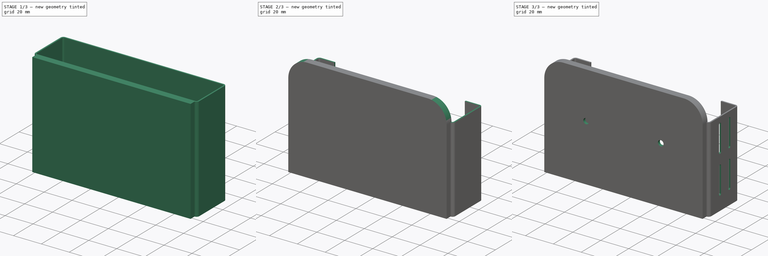
[diagram: build sequence overview — one tinted view per stage of 3, left to right]
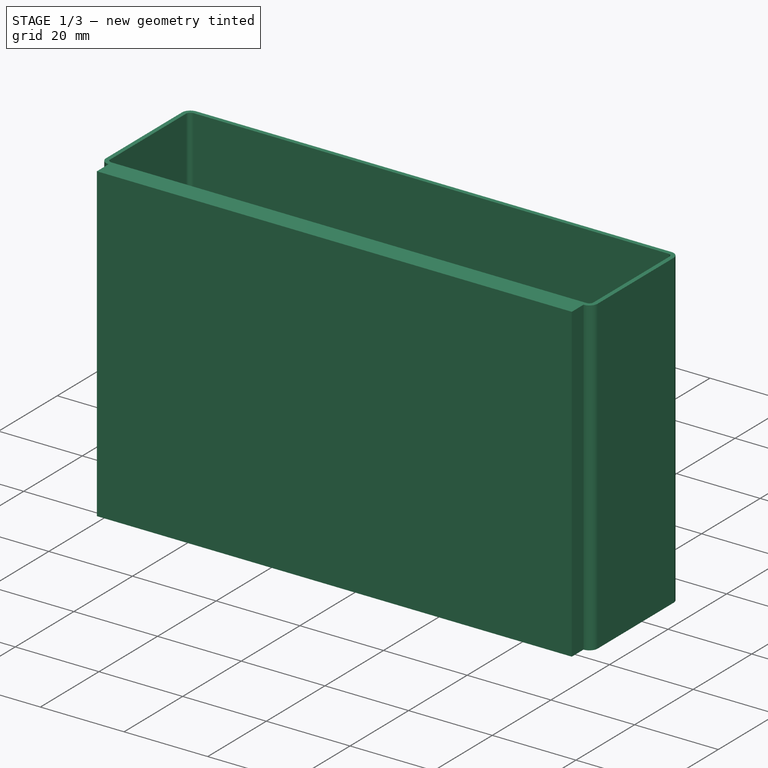
[diagram: stage 1 of 3 — iso view after this stage's code; geometry added in this stage tinted green]
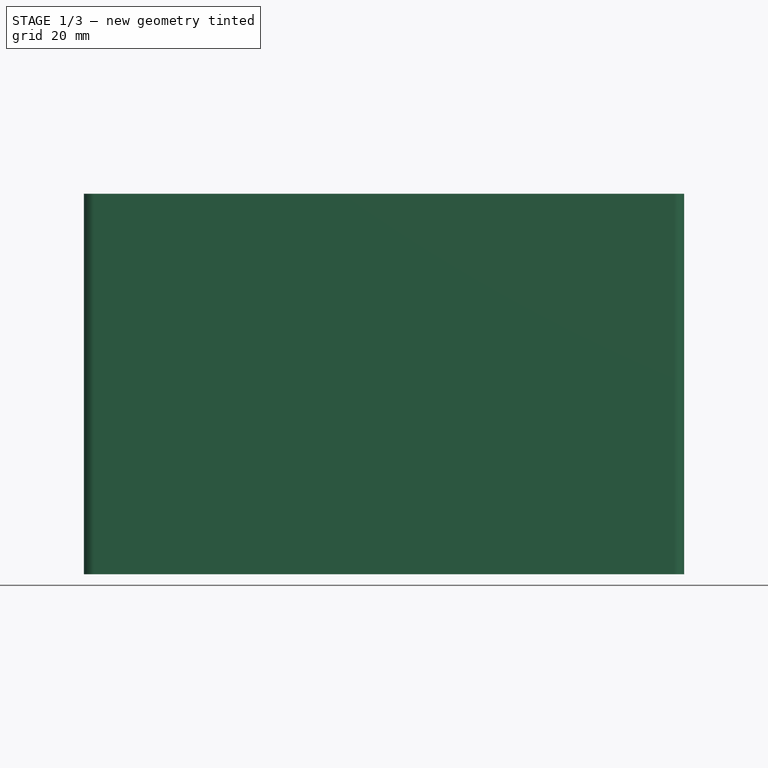
[diagram: stage 1 of 3 — front view after this stage's code; geometry added in this stage tinted green]
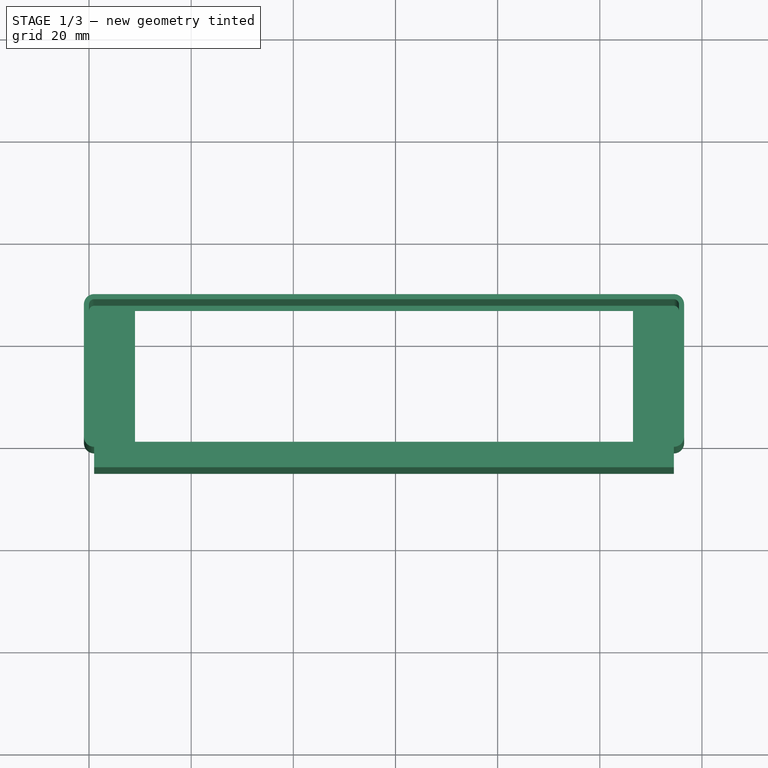
[diagram: stage 1 of 3 — top view after this stage's code; geometry added in this stage tinted green]
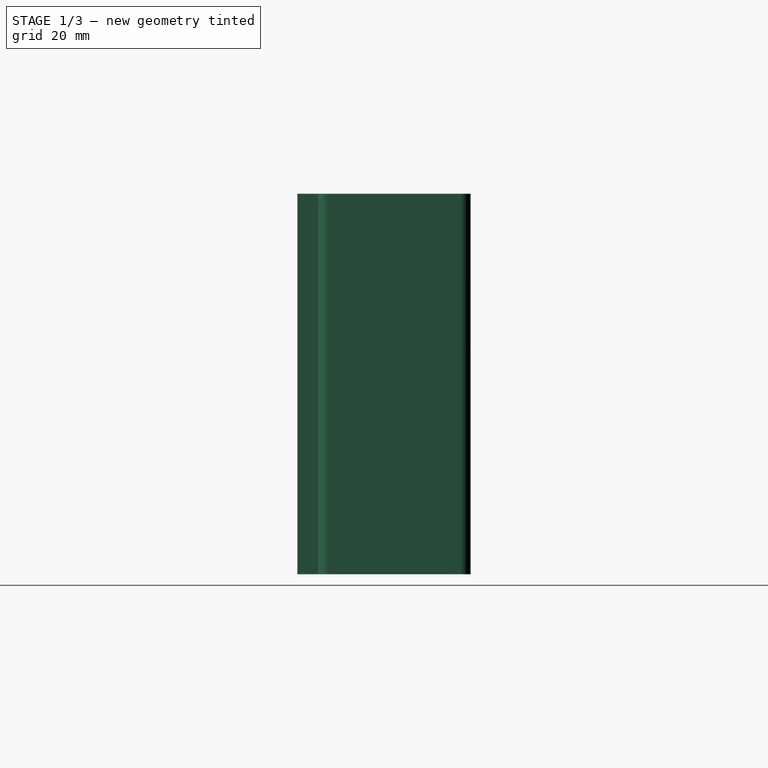
[diagram: stage 1 of 3 — right view after this stage's code; geometry added in this stage tinted green]
FCSTD DOCUMENT  (FreeCAD 0.19R24415 (Git))
Label: grandstream-ht702-mount
License: All rights reserved
LicenseURL: http://en.wikipedia.org/wiki/All_rights_reserved
objects: Sketcher::SketchObject×7, PartDesign::Pocket×4, PartDesign::Pad×2, PartDesign::Hole×1, PartDesign::Body×1
note: 22 computed .brp shape members not serialized (recipe doc carries the construction recipe); baked Part::Feature solids carry a one-line shape summary decoded from their .brp

FEATURE [Sketcher::SketchObject] Sketch
  FullyConstrained = true
  MapMode = 5
  Support = -> [XY_Plane]
  sketch-geometry (21):
    g0: LineSegment StartX=1 StartY=0 StartZ=0 EndX=114.5 EndY=0 EndZ=0
    g1: LineSegment StartX=115.5 StartY=1 StartZ=0 EndX=115.5 EndY=26.9 EndZ=0
    g2: LineSegment StartX=114.5 StartY=27.9 StartZ=0 EndX=1 EndY=27.9 EndZ=0
    g3: LineSegment StartX=0 StartY=26.9 StartZ=0 EndX=0 EndY=1 EndZ=0
    g4: ArcOfCircle CenterX=1 CenterY=1 CenterZ=0 NormalX=0 NormalY=0 NormalZ=1 AngleXU=0 Radius=1 StartAngle=3.14159 EndAngle=4.71239
    g5: ArcOfCircle CenterX=1 CenterY=26.9 CenterZ=0 NormalX=0 NormalY=0 NormalZ=1 AngleXU=0 Radius=1 StartAngle=1.5708 EndAngle=3.14159
    g6: GeomPoint X=0 Y=27.9 Z=0
    g7: ArcOfCircle CenterX=114.5 CenterY=1 CenterZ=0 NormalX=0 NormalY=0 NormalZ=1 AngleXU=0 Radius=1 StartAngle=4.71239 EndAngle=6.28319
    g8: GeomPoint X=115.5 Y=0 Z=0
    g9: ArcOfCircle CenterX=114.5 CenterY=26.9 CenterZ=0 NormalX=0 NormalY=0 NormalZ=1 AngleXU=0 Radius=1 StartAngle=-9e-16 EndAngle=1.5708
    g10: GeomPoint X=115.5 Y=27.9 Z=0
    g11: LineSegment StartX=1 StartY=-1 StartZ=0 EndX=1 EndY=-5 EndZ=0
    g12: LineSegment StartX=1 StartY=-5 StartZ=0 EndX=114.5 EndY=-5 EndZ=0
    g13: LineSegment StartX=114.5 StartY=-1 StartZ=0 EndX=114.5 EndY=-5 EndZ=0
    g14: LineSegment StartX=-1 StartY=1 StartZ=0 EndX=-1 EndY=26.9 EndZ=0
    g15: ArcOfCircle CenterX=1 CenterY=1 CenterZ=0 NormalX=0 NormalY=0 NormalZ=1 AngleXU=0 Radius=2 StartAngle=3.14159 EndAngle=4.71239
    g16: LineSegment StartX=1 StartY=28.9 StartZ=0 EndX=114.5 EndY=28.9 EndZ=0
    g17: ArcOfCircle CenterX=1 CenterY=26.9 CenterZ=0 NormalX=0 NormalY=0 NormalZ=1 AngleXU=0 Radius=2 StartAngle=1.5708 EndAngle=3.14159
    g18: LineSegment StartX=116.5 StartY=0.999995 StartZ=0 EndX=116.5 EndY=26.9 EndZ=0
    g19: ArcOfCircle CenterX=114.5 CenterY=26.9 CenterZ=0 NormalX=0 NormalY=0 NormalZ=1 AngleXU=0 Radius=2 StartAngle=4e-16 EndAngle=1.5708
    g20: ArcOfCircle CenterX=114.5 CenterY=1 CenterZ=0 NormalX=0 NormalY=0 NormalZ=1 AngleXU=0 Radius=2 StartAngle=4.71239 EndAngle=6.28318
  constraints (56):
    c: Horizontal(g0)
    c: Horizontal(g2)
    c: Vertical(g1)
    c: Vertical(g3)
    c: DistanceY(g-1,g6) = 27.9  'inner height'
    c: DistanceX(g6,g10) = 115.5  'inner width'
    c: Tangent(g3,g4) = -1.5708
    c: Tangent(g0,g4) = -1.5708
    c: Horizontal(g0,g-1)
    c: Vertical(g4,g-1)
    c: PointOnObject(g6,g3)
    c: PointOnObject(g6,g2)
    c: Tangent(g3,g5) = -1.5708
    c: Tangent(g2,g5) = -1.5708
    c: DistanceX(g-1,g0) = 1  'corner rounding'
    c: Vertical(g4,g5)
    c: PointOnObject(g8,g1)
    c: PointOnObject(g8,g0)
    c: Tangent(g1,g7) = -1.5708
    c: Tangent(g0,g7) = -1.5708
    c: Horizontal(g4,g7)
    c: PointOnObject(g10,g2)
    c: PointOnObject(g10,g1)
    c: Tangent(g2,g9) = -1.5708
    c: Tangent(g1,g9) = -1.5708
    c: Vertical(g9,g7)
    c: Vertical(g11)
    c: Vertical(g0,g11)
    c: DistanceY(g11,g0) = 1
    c: DistanceY(g11,g11) = 4
    c: Coincident(g12,g11)
    c: Horizontal(g12)
    c: Coincident(g13,g12)
    c: Vertical(g7,g13)
    c: Vertical(g13)
    c: Horizontal(g13,g11)
    c: Vertical(g14)
    c: Horizontal(g4,g14)
    c: Horizontal(g5,g14)
    c: Coincident(g15,g4)
    c: Coincident(g15,g14)
    c: Coincident(g11,g15)
    c: Horizontal(g16)
    c: Vertical(g5,g16)
    c: Vertical(g9,g16)
    c: Coincident(g17,g5)
    c: Coincident(g17,g14)
    c: Coincident(g17,g16)
    c: Vertical(g18)
    c: Horizontal(g9,g18)
    c: Coincident(g19,g9)
    c: Coincident(g19,g18)
    c: Coincident(g19,g16)
    c: Coincident(g20,g7)
    c: Coincident(g20,g18)
    c: Coincident(g20,g13)
FEATURE [PartDesign::Pad] Pad
  Direction = (1,1,1)
  Length = 74.5
  Length2 = 100
  Profile = -> Sketch
  Type = 0
FEATURE [Sketcher::SketchObject] Sketch001
  ExternalGeometry = -> [Pad]
  FullyConstrained = true
  MapMode = 5
  Support = -> [XY_Plane]
  sketch-geometry (18):
    g0: LineSegment StartX=-1 StartY=1 StartZ=0 EndX=-1 EndY=26.9 EndZ=0
    g1: LineSegment StartX=116.5 StartY=26.9 StartZ=0 EndX=116.5 EndY=0.999995 EndZ=0
    g2: LineSegment StartX=114.5 StartY=-1 StartZ=0 EndX=114.5 EndY=-5 EndZ=0
    g3: LineSegment StartX=114.5 StartY=-5 StartZ=0 EndX=1 EndY=-5 EndZ=0
    g4: LineSegment StartX=1 StartY=-5 StartZ=0 EndX=1 EndY=-1 EndZ=0
    g5: ArcOfCircle CenterX=114.5 CenterY=1 CenterZ=0 NormalX=0 NormalY=0 NormalZ=1 AngleXU=0 Radius=2 StartAngle=4.71239 EndAngle=6.28318
    g6: ArcOfCircle CenterX=1 CenterY=1 CenterZ=0 NormalX=0 NormalY=0 NormalZ=1 AngleXU=0 Radius=2 StartAngle=3.14159 EndAngle=4.71239
    g7: LineSegment StartX=1 StartY=28.9 StartZ=0 EndX=114.5 EndY=28.9 EndZ=0
    g8: ArcOfCircle CenterX=1 CenterY=26.9 CenterZ=0 NormalX=0 NormalY=0 NormalZ=1 AngleXU=0 Radius=2 StartAngle=1.5708 EndAngle=3.14159
    g9: ArcOfCircle CenterX=114.5 CenterY=26.9 CenterZ=0 NormalX=0 NormalY=0 NormalZ=1 AngleXU=0 Radius=2 StartAngle=2e-16 EndAngle=1.5708
    g10: LineSegment StartX=-1 StartY=26.9 StartZ=0 EndX=9 EndY=26.9 EndZ=0
    g11: LineSegment StartX=-1 StartY=1 StartZ=0 EndX=9 EndY=1 EndZ=0
    g12: LineSegment StartX=9 StartY=26.9 StartZ=0 EndX=9 EndY=1 EndZ=0
    g13: LineSegment StartX=116.5 StartY=26.9 StartZ=0 EndX=106.5 EndY=26.9 EndZ=0
    g14: LineSegment StartX=116.5 StartY=0.999995 StartZ=0 EndX=106.5 EndY=0.999995 EndZ=0
    g15: LineSegment StartX=106.5 StartY=26.9 StartZ=0 EndX=106.5 EndY=0.999995 EndZ=0
    g16: LineSegment StartX=9 StartY=26.9 StartZ=0 EndX=106.5 EndY=26.9 EndZ=0
    g17: LineSegment StartX=9 StartY=1 StartZ=0 EndX=106.5 EndY=0.999995 EndZ=0
  constraints (44):
    c: Coincident(g0,g-9)
    c: Coincident(g4,g-9)
    c: Coincident(g4,g-8)
    c: Coincident(g3,g4)
    c: Coincident(g-7,g3)
    c: Coincident(g3,g2)
    c: Coincident(g-5,g1)
    c: Coincident(g1,g-4)
    c: Coincident(g-3,g0)
    c: Coincident(g2,g-6)
    c: Coincident(g5,g-5)
    c: Coincident(g5,g1)
    c: Coincident(g5,g2)
    c: Coincident(g6,g-9)
    c: Coincident(g6,g4)
    c: Coincident(g6,g0)
    c: Coincident(g7,g-3)
    c: Coincident(g7,g-4)
    c: Coincident(g8,g-3)
    c: Coincident(g8,g0)
    c: Coincident(g8,g7)
    c: Coincident(g9,g-4)
    c: Coincident(g9,g1)
    c: Coincident(g9,g7)
    c: Coincident(g10,g0)
    c: Horizontal(g10)
    c: DistanceX(g10,g10) = 10
    c: Coincident(g11,g0)
    c: Horizontal(g11)
    c: Coincident(g12,g10)
    c: Vertical(g12)
    c: Coincident(g11,g12)
    c: Coincident(g13,g1)
    c: Horizontal(g13)
    c: DistanceX(g13,g13) = 10
    c: Coincident(g14,g1)
    c: Horizontal(g14)
    c: Coincident(g15,g13)
    c: Coincident(g15,g14)
    c: Vertical(g15)
    c: Coincident(g16,g12)
    c: Coincident(g16,g15)
    c: Coincident(g17,g12)
    c: Coincident(g17,g15)
FEATURE [PartDesign::Pad] Pad001
  BaseFeature = -> Pad
  Direction = (1,1,1)
  Length = 1
  Length2 = 100
  Profile = -> Sketch001
  Type = 0
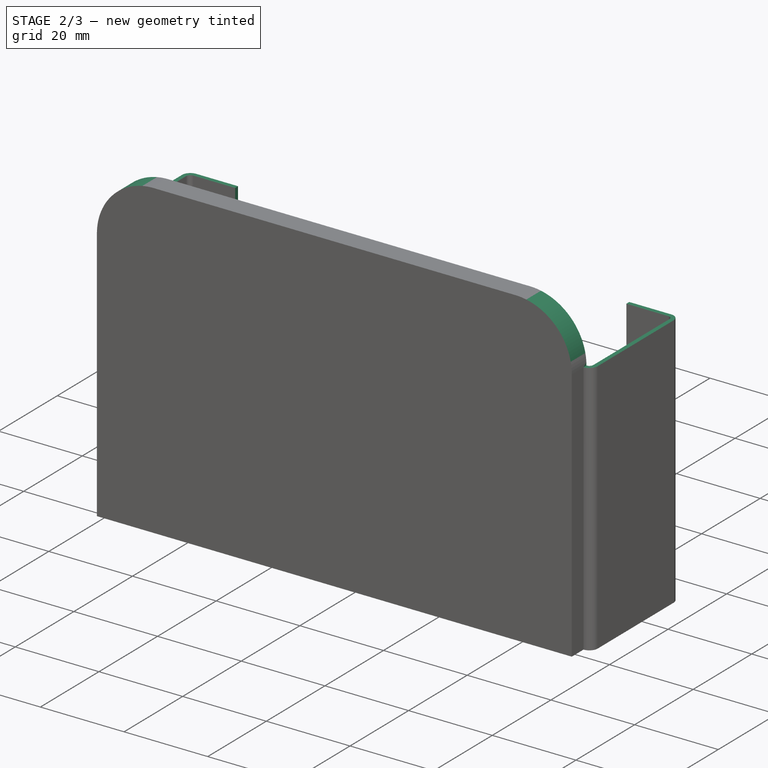
[diagram: stage 2 of 3 — iso view after this stage's code; geometry added in this stage tinted green]
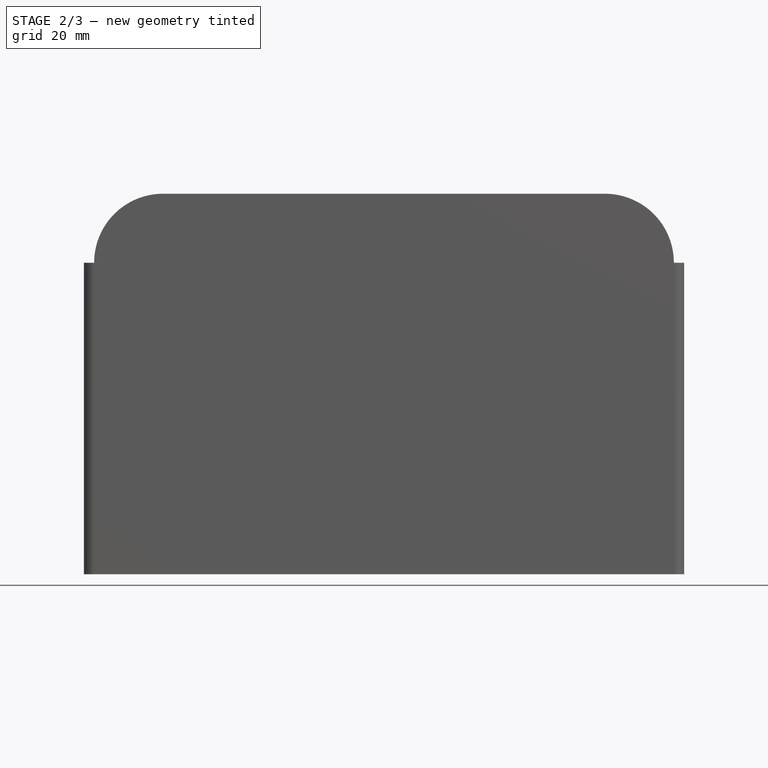
[diagram: stage 2 of 3 — front view after this stage's code; geometry added in this stage tinted green]
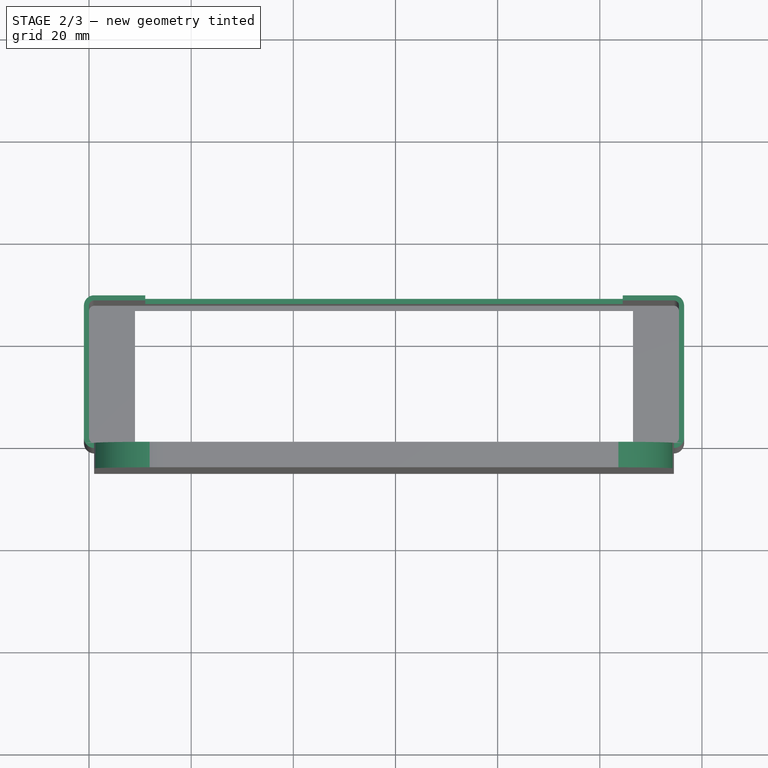
[diagram: stage 2 of 3 — top view after this stage's code; geometry added in this stage tinted green]
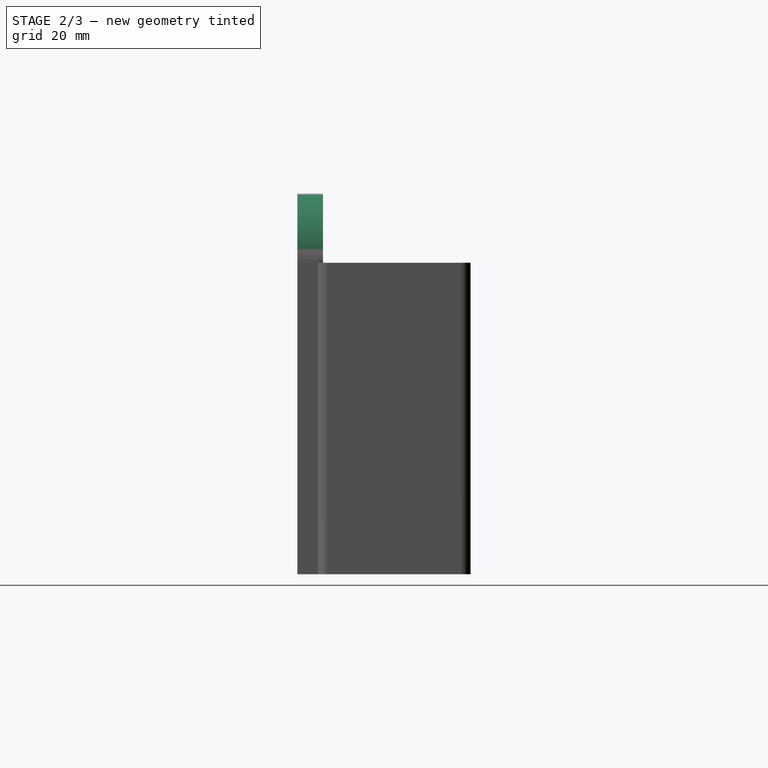
[diagram: stage 2 of 3 — right view after this stage's code; geometry added in this stage tinted green]
FEATURE [Sketcher::SketchObject] Sketch002
  ExternalGeometry = -> [Pad001]
  FullyConstrained = true
  MapMode = 5
  Placement = pos=(0,28.9,0) rot=(0,0.707107,0.707107;3.14159rad)
  Support = -> [Pad001]
  sketch-geometry (12):
    g0: LineSegment StartX=-114.5 StartY=1 StartZ=0 EndX=-104.5 EndY=21 EndZ=0
    g1: LineSegment StartX=-1 StartY=1 StartZ=0 EndX=-11 EndY=21 EndZ=0
    g2: LineSegment StartX=-114.5 StartY=74.5 StartZ=0 EndX=-124.5 EndY=74.5 EndZ=0
    g3: LineSegment StartX=-1 StartY=74.5 StartZ=0 EndX=9 EndY=74.5 EndZ=0
    g4: LineSegment StartX=-104.5 StartY=21 StartZ=0 EndX=-104.5 EndY=61 EndZ=0
    g5: LineSegment StartX=-104.5 StartY=21 StartZ=0 EndX=-11 EndY=21 EndZ=0
    g6: LineSegment StartX=-11 StartY=21 StartZ=0 EndX=-11 EndY=61 EndZ=0
    g7: LineSegment StartX=-104.5 StartY=61 StartZ=0 EndX=-124.5 EndY=61 EndZ=0
    g8: LineSegment StartX=-11 StartY=61 StartZ=0 EndX=9 EndY=61 EndZ=0
    g9: LineSegment StartX=-124.5 StartY=61 StartZ=0 EndX=-124.5 EndY=74.5 EndZ=0
    g10: LineSegment StartX=9 StartY=61 StartZ=0 EndX=9 EndY=74.5 EndZ=0
    g11: LineSegment StartX=-124.5 StartY=74.5 StartZ=0 EndX=9 EndY=74.5 EndZ=0
  constraints (32):
    c: Coincident(g0,g-3)
    c: Coincident(g1,g-3)
    c: DistanceX(g1,g1) = 10
    c: DistanceY(g1,g1) = 20
    c: DistanceX(g0,g0) = 10
    c: Horizontal(g0,g1)
    c: Coincident(g2,g-4)
    c: Horizontal(g2)
    c: Coincident(g3,g-4)
    c: Horizontal(g3)
    c: DistanceX(g3,g3) = 10
    c: DistanceX(g2,g2) = 10
    c: Coincident(g4,g0)
    c: Vertical(g4)
    c: DistanceY(g4,g4) = 40
    c: Coincident(g5,g4)
    c: Coincident(g5,g1)
    c: Coincident(g6,g5)
    c: Vertical(g6)
    c: Horizontal(g6,g4)
    c: Coincident(g7,g4)
    c: Horizontal(g7)
    c: Coincident(g8,g6)
    c: Horizontal(g8)
    c: Coincident(g9,g7)
    c: Vertical(g9)
    c: Coincident(g9,g2)
    c: Coincident(g10,g8)
    c: Coincident(g10,g3)
    c: Vertical(g10)
    c: Coincident(g11,g9)
    c: Coincident(g11,g10)
FEATURE [PartDesign::Pocket] Pocket
  BaseFeature = -> Pad001
  Length = 0
  Length2 = 100
  Profile = -> Sketch002
  Type = 3
  UpToFace = -> Pad001 [Face35]
FEATURE [Sketcher::SketchObject] Sketch003
  ExternalGeometry = -> [Pocket]
  FullyConstrained = true
  MapMode = 5
  Placement = pos=(0,0,0) rot=(0,0.707107,0.707107;3.14159rad)
  Support = -> [Pocket]
  sketch-geometry (10):
    g0: ArcOfCircle CenterX=-101 CenterY=61 CenterZ=0 NormalX=0 NormalY=0 NormalZ=1 AngleXU=0 Radius=13.5 StartAngle=1.5708 EndAngle=3.14159
    g1: GeomPoint X=-114.5 Y=74.5 Z=0
    g2: ArcOfCircle CenterX=-14.5 CenterY=61 CenterZ=0 NormalX=0 NormalY=0 NormalZ=1 AngleXU=0 Radius=13.5 StartAngle=0 EndAngle=1.5708
    g3: GeomPoint X=-1 Y=74.5 Z=0
    g4: LineSegment StartX=-114.5 StartY=61 StartZ=0 EndX=-124.5 EndY=61 EndZ=0
    g5: LineSegment StartX=-124.5 StartY=61 StartZ=0 EndX=-124.5 EndY=74.5 EndZ=0
    g6: LineSegment StartX=-124.5 StartY=74.5 StartZ=0 EndX=-101 EndY=74.5 EndZ=0
    g7: LineSegment StartX=-14.5 StartY=74.5 StartZ=0 EndX=9 EndY=74.5 EndZ=0
    g8: LineSegment StartX=9 StartY=74.5 StartZ=0 EndX=9 EndY=61 EndZ=0
    g9: LineSegment StartX=9 StartY=61 StartZ=0 EndX=-1 EndY=61 EndZ=0
  constraints (26):
    c: Coincident(g1,g-5)
    c: Coincident(g3,g-5)
    c: Coincident(g6,g0) = 1.5708
    c: Coincident(g0,g-3)
    c: Horizontal(g0,g0)
    c: Coincident(g7,g2) = 1.5708
    c: Coincident(g2,g-4)
    c: Horizontal(g2,g2)
    c: Coincident(g4,g0)
    c: Horizontal(g4)
    c: Coincident(g5,g4)
    c: Vertical(g5)
    c: Coincident(g6,g5)
    c: Horizontal(g6)
    c: Horizontal(g7)
    c: Coincident(g8,g7)
    c: Vertical(g8)
    c: Coincident(g9,g8)
    c: Coincident(g9,g2)
    c: Horizontal(g9)
    c: DistanceX(g4,g4) = 10
    c: DistanceX(g9,g9) = 10
    c: Horizontal(g2,g3)
    c: Horizontal(g0,g1)
    c: Vertical(g2,g2)
    c: Vertical(g0,g0)
FEATURE [PartDesign::Pocket] Pocket001
  BaseFeature = -> Pocket
  Length = 5
  Length2 = 100
  Profile = -> Sketch003
  Type = 1
FEATURE [Sketcher::SketchObject] Sketch004
  ExternalGeometry = -> [Pocket001]
  FullyConstrained = true
  MapMode = 5
  Placement = pos=(0,0,0) rot=(0,0.707107,0.707107;3.14159rad)
  Support = -> [Pocket001]
  sketch-geometry (4):
    g0: LineSegment StartX=-104.5 StartY=41 StartZ=0 EndX=-84.5 EndY=41 EndZ=0
    g1: LineSegment StartX=-11 StartY=41 StartZ=0 EndX=-31 EndY=41 EndZ=0
    g2: Circle CenterX=-84.5 CenterY=41 CenterZ=0 NormalX=0 NormalY=0 NormalZ=1 AngleXU=0 Radius=5
    g3: Circle CenterX=-31 CenterY=41 CenterZ=0 NormalX=0 NormalY=0 NormalZ=1 AngleXU=0 Radius=5
  constraints (10):
    c: Horizontal(g0)
    c: Symmetric(g-3,g-3,g0)
    c: DistanceX(g0,g0) = 20
    c: Horizontal(g1)
    c: Symmetric(g-4,g-4,g1)
    c: DistanceX(g1,g1) = 20
    c: Coincident(g2,g0)
    c: Radius(g2) = 5
    c: Coincident(g3,g1)
    c: Radius(g3) = 5
FEATURE [Sketcher::SketchObject] Sketch005
  ExternalGeometry = -> [Pocket001]
  FullyConstrained = true
  MapMode = 5
  Placement = pos=(0,0,0) rot=(0,0.707107,0.707107;3.14159rad)
  Support = -> [Pocket001]
  sketch-geometry (4):
    g0: LineSegment StartX=-104.5 StartY=41 StartZ=0 EndX=-84.5 EndY=41 EndZ=0
    g1: LineSegment StartX=-11 StartY=41 StartZ=0 EndX=-31 EndY=41 EndZ=0
    g2: Circle CenterX=-84.5 CenterY=41 CenterZ=0 NormalX=0 NormalY=0 NormalZ=1 AngleXU=0 Radius=2
    g3: Circle CenterX=-31 CenterY=41 CenterZ=0 NormalX=0 NormalY=0 NormalZ=1 AngleXU=0 Radius=2
  constraints (10):
    c: Horizontal(g0)
    c: Symmetric(g-3,g-3,g0)
    c: DistanceX(g0,g0) = 20
    c: Horizontal(g1)
    c: Symmetric(g-4,g-4,g1)
    c: DistanceX(g1,g1) = 20
    c: Coincident(g2,g0)
    c: Coincident(g3,g1)
    c: Equal(g2,g3)
    c: Radius(g2) = 2
FEATURE [PartDesign::Pocket] Pocket002
  BaseFeature = -> Pocket001
  Length = 3
  Length2 = 100
  Profile = -> Sketch004
  Type = 0
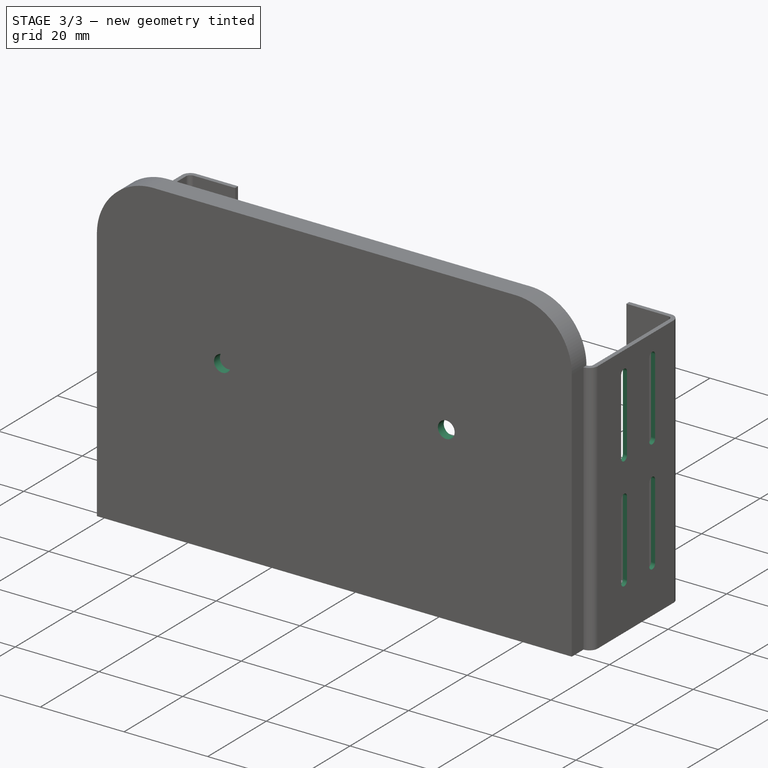
[diagram: stage 3 of 3 — iso view after this stage's code; geometry added in this stage tinted green]
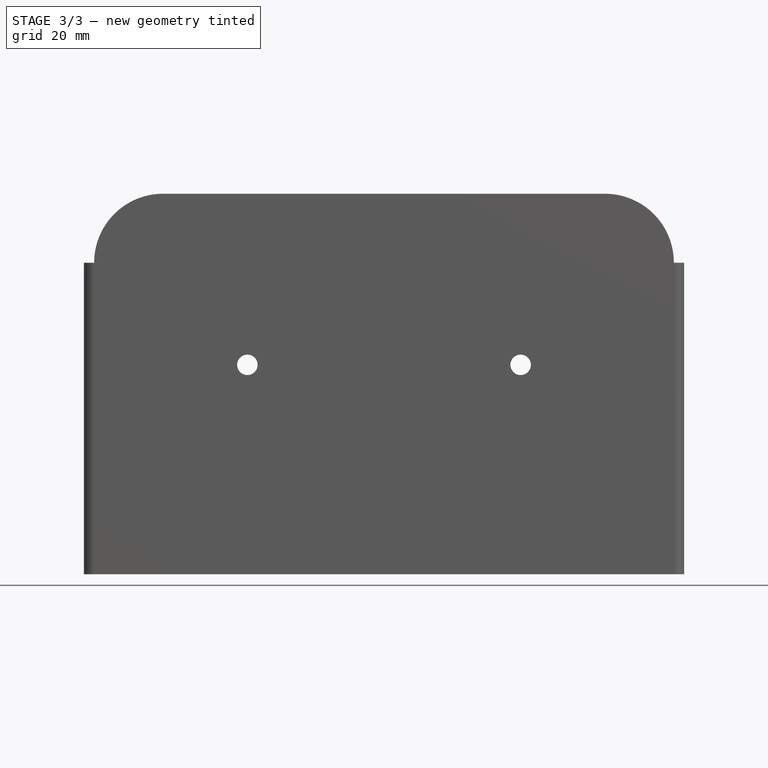
[diagram: stage 3 of 3 — front view after this stage's code; geometry added in this stage tinted green]
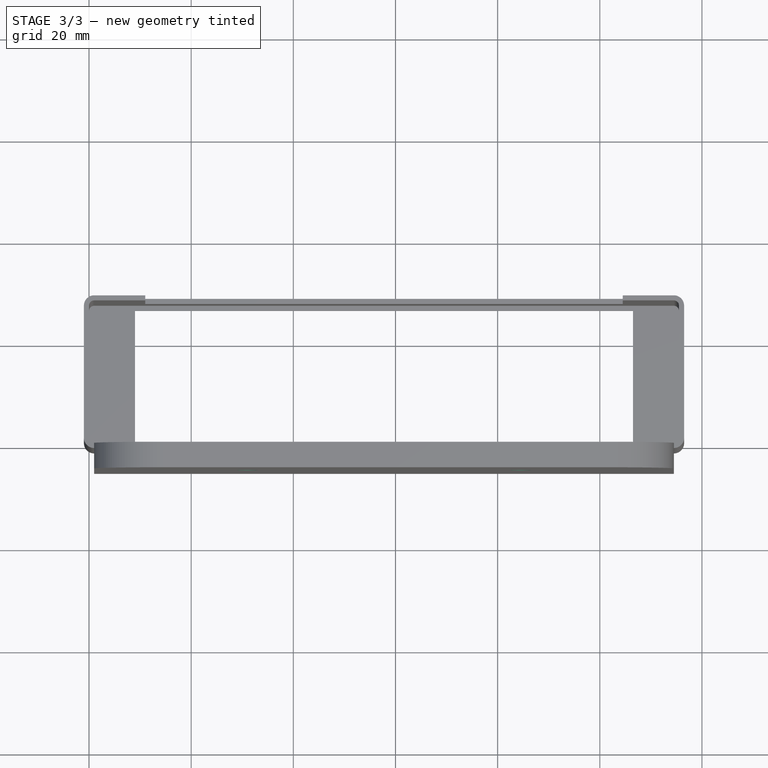
[diagram: stage 3 of 3 — top view after this stage's code; geometry added in this stage tinted green]
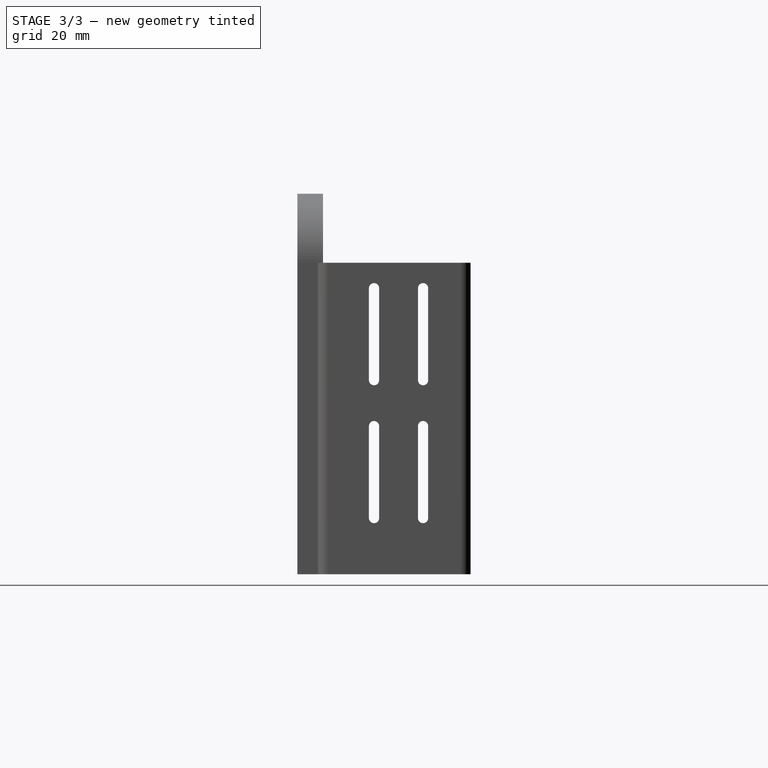
[diagram: stage 3 of 3 — right view after this stage's code; geometry added in this stage tinted green]
FEATURE [PartDesign::Hole] Hole
  BaseFeature = -> Pocket002
  Depth = 25
  DepthType = 0
  Diameter = 4
  DrillForDepth = false
  DrillPoint = 1
  DrillPointAngle = 118
  HoleCutCountersinkAngle = 90
  HoleCutCustomValues = false
  HoleCutDepth = 0
  HoleCutDiameter = 6.1
  HoleCutType = 0
  ModelActualThread = false
  Profile = -> Sketch005
  Tapered = false
  TaperedAngle = 90
  ThreadAngle = 0
  ThreadClass = 0
  ThreadCutOffInner = 0
  ThreadCutOffOuter = 0
  ThreadDirection = 0
  ThreadFit = 0
  ThreadPitch = 0
  ThreadSize = 0
  ThreadType = 0
  Threaded = false
FEATURE [Sketcher::SketchObject] Sketch006
  ExternalGeometry = -> [Hole]
  FullyConstrained = true
  MapMode = 5
  Placement = pos=(116.5,0,0) rot=(0.57735,0.57735,0.57735;2.0944rad)
  Support = -> [Hole]
  sketch-geometry (26):
    g0: LineSegment StartX=0 StartY=0 StartZ=0 EndX=10 EndY=0 EndZ=0
    g1: LineSegment StartX=10 StartY=0 StartZ=0 EndX=19.6 EndY=0 EndZ=0
    g2: LineSegment StartX=10 StartY=0 StartZ=0 EndX=10 EndY=11 EndZ=0
    g3: LineSegment StartX=19.6 StartY=0 StartZ=0 EndX=19.6 EndY=11 EndZ=0
    g4: LineSegment StartX=10 StartY=11 StartZ=0 EndX=10 EndY=29 EndZ=0
    g5: LineSegment StartX=10 StartY=29 StartZ=0 EndX=10 EndY=38 EndZ=0
    g6: LineSegment StartX=10 StartY=38 StartZ=0 EndX=10 EndY=56 EndZ=0
    g7: LineSegment StartX=19.6 StartY=11 StartZ=0 EndX=19.6 EndY=29 EndZ=0
    g8: LineSegment StartX=19.6 StartY=29 StartZ=0 EndX=19.6 EndY=38 EndZ=0
    g9: LineSegment StartX=19.6 StartY=38 StartZ=0 EndX=19.6 EndY=56 EndZ=0
    g10: ArcOfCircle CenterX=10 CenterY=11 CenterZ=0 NormalX=0 NormalY=0 NormalZ=1 AngleXU=0 Radius=1 StartAngle=3.14159 EndAngle=6.28319
    g11: ArcOfCircle CenterX=10 CenterY=29 CenterZ=0 NormalX=0 NormalY=0 NormalZ=1 AngleXU=0 Radius=1 StartAngle=-9e-16 EndAngle=3.14159
    g12: LineSegment StartX=11 StartY=11 StartZ=0 EndX=11 EndY=29 EndZ=0
    g13: LineSegment StartX=9 StartY=11 StartZ=0 EndX=9 EndY=29 EndZ=0
    g14: ArcOfCircle CenterX=10 CenterY=38 CenterZ=0 NormalX=0 NormalY=0 NormalZ=1 AngleXU=0 Radius=1 StartAngle=3.14159 EndAngle=6.28319
    g15: ArcOfCircle CenterX=10 CenterY=56 CenterZ=0 NormalX=0 NormalY=0 NormalZ=1 AngleXU=0 Radius=1 StartAngle=1.6e-15 EndAngle=3.14159
    g16: LineSegment StartX=11 StartY=38 StartZ=0 EndX=11 EndY=56 EndZ=0
    g17: LineSegment StartX=9 StartY=38 StartZ=0 EndX=9 EndY=56 EndZ=0
    g18: ArcOfCircle CenterX=19.6 CenterY=11 CenterZ=0 NormalX=0 NormalY=0 NormalZ=1 AngleXU=0 Radius=1 StartAngle=3.14159 EndAngle=6.28319
    g19: ArcOfCircle CenterX=19.6 CenterY=29 CenterZ=0 NormalX=0 NormalY=0 NormalZ=1 AngleXU=0 Radius=1 StartAngle=-9e-16 EndAngle=3.14159
    g20: LineSegment StartX=20.6 StartY=11 StartZ=0 EndX=20.6 EndY=29 EndZ=0
    g21: LineSegment StartX=18.6 StartY=11 StartZ=0 EndX=18.6 EndY=29 EndZ=0
    g22: ArcOfCircle CenterX=19.6 CenterY=38 CenterZ=0 NormalX=0 NormalY=0 NormalZ=1 AngleXU=0 Radius=1 StartAngle=3.14159 EndAngle=6.28319
    g23: ArcOfCircle CenterX=19.6 CenterY=56 CenterZ=0 NormalX=0 NormalY=0 NormalZ=1 AngleXU=0 Radius=1 StartAngle=2.4e-15 EndAngle=3.14159
    g24: LineSegment StartX=20.6 StartY=38 StartZ=0 EndX=20.6 EndY=56 EndZ=0
    g25: LineSegment StartX=18.6 StartY=38 StartZ=0 EndX=18.6 EndY=56 EndZ=0
  constraints (66):
    c: Coincident(g0,g-1)
    c: DistanceX(g0,g0) = 10
    c: Coincident(g1,g0)
    c: Horizontal(g1)
    c: Horizontal(g0)
    c: DistanceX(g1,g1) = 9.6
    c: Coincident(g2,g0)
    c: Vertical(g2)
    c: DistanceY(g2,g2) = 11
    c: Coincident(g3,g1)
    c: Vertical(g3)
    c: Equal(g3,g2)
    c: Coincident(g4,g2)
    c: Vertical(g4)
    c: DistanceY(g4,g4) = 18
    c: Coincident(g5,g4)
    c: Vertical(g5)
    c: Coincident(g6,g5)
    c: Vertical(g6)
    c: DistanceY(g5,g5) = 9
    c: Equal(g6,g4)
    c: Coincident(g7,g3)
    c: Vertical(g7)
    c: Coincident(g8,g7)
    c: Vertical(g8)
    c: Coincident(g9,g8)
    c: Vertical(g9)
    c: Equal(g9,g6)
    c: Equal(g5,g8)
    c: Equal(g7,g4)
    c: Tangent(g10,g13) = 1.5708
    c: Tangent(g10,g12) = -1.5708
    c: Tangent(g12,g11) = -1.5708
    c: Tangent(g13,g11) = 1.5708
    c: Vertical(g12)
    c: Equal(g10,g11)
    c: Coincident(g10,g2)
    c: DistanceX(g11,g11) = 1
    c: Horizontal(g11,g4)
    c: Tangent(g14,g17) = 1.5708
    c: Tangent(g14,g16) = -1.5708
    c: Tangent(g16,g15) = -1.5708
    c: Tangent(g17,g15) = 1.5708
    c: Vertical(g16)
    c: Equal(g14,g15)
    c: Coincident(g14,g5)
    c: Vertical(g11,g15)
    c: Horizontal(g15,g6)
    c: Tangent(g18,g21) = 1.5708
    c: Tangent(g18,g20) = -1.5708
    c: Tangent(g20,g19) = -1.5708
    c: Tangent(g21,g19) = 1.5708
    c: Vertical(g20)
    c: Equal(g18,g19)
    c: Coincident(g18,g3)
    c: Horizontal(g19,g7)
    c: DistanceX(g18,g18) = 1
    c: Tangent(g22,g25) = 1.5708
    c: Tangent(g22,g24) = -1.5708
    c: Tangent(g24,g23) = -1.5708
    c: Tangent(g25,g23) = 1.5708
    c: Vertical(g24)
    c: Equal(g22,g23)
    c: Coincident(g22,g8)
    c: Horizontal(g9,g23)
    c: Vertical(g23,g19)
FEATURE [PartDesign::Pocket] Pocket003
  BaseFeature = -> Hole
  Length = 5
  Length2 = 100
  Profile = -> Sketch006
  Type = 1
FEATURE [PartDesign::Body] Body
  Group = -> [Sketch,Pad,Sketch001,Pad001,Sketch002,Pocket,Sketch003,Pocket001,Sketch004,Sketch005,Pocket002,Hole,Sketch006,Pocket003]
  Origin = -> Origin
  Tip = -> Pocket003
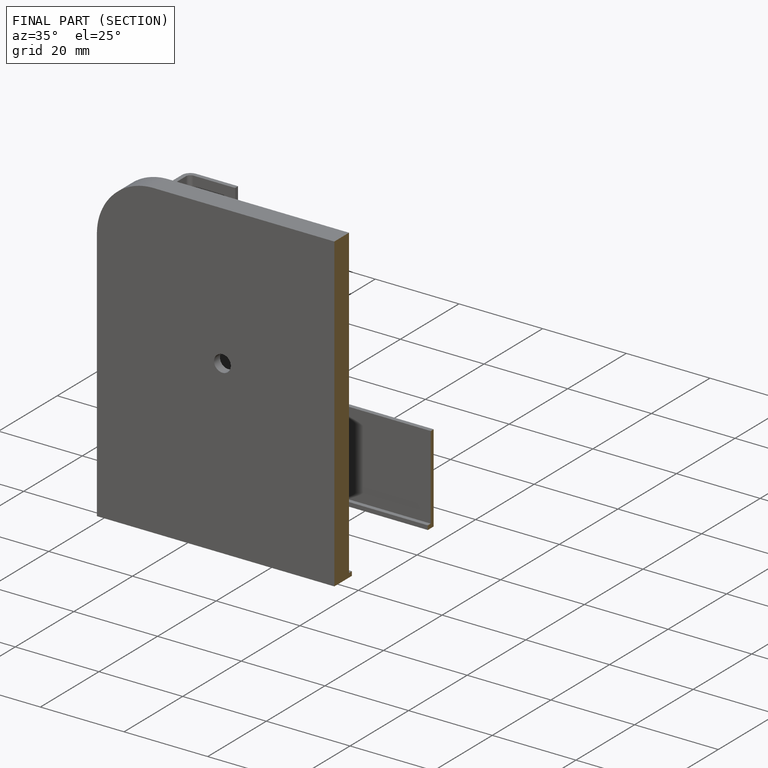
[diagram: finished part — half-section view (interior)]
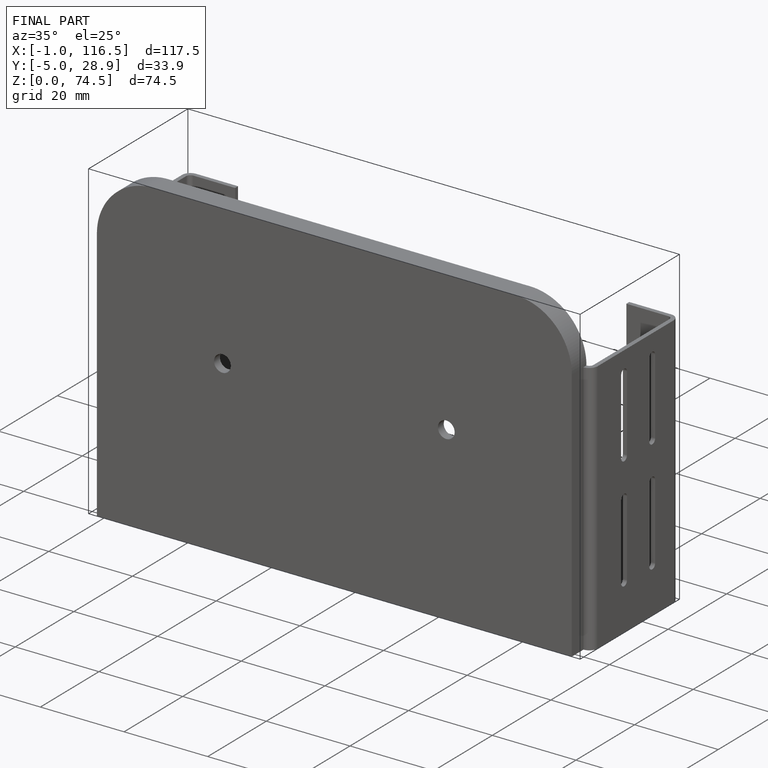
[diagram: finished part — iso view with bounding-box wireframe]
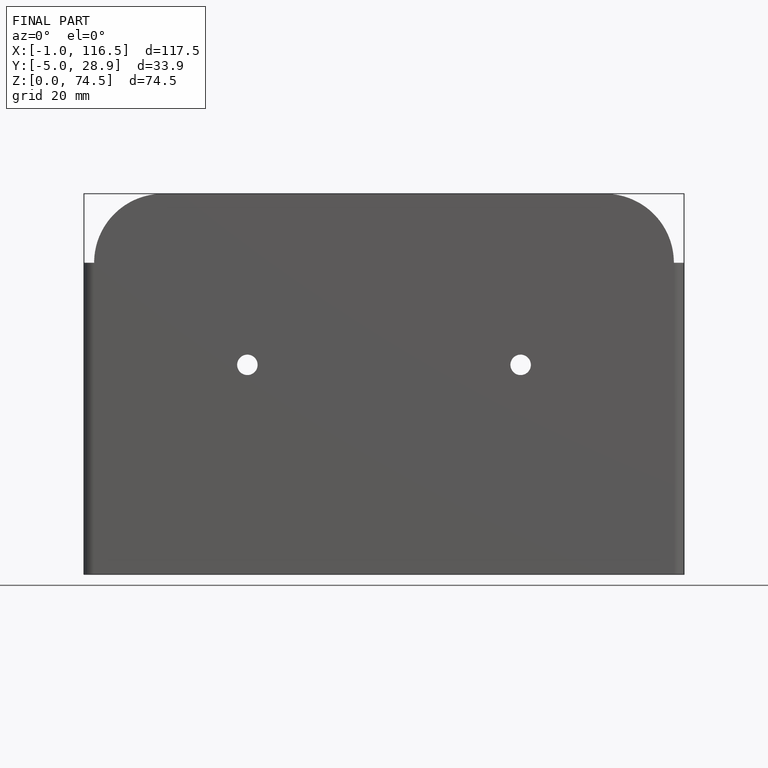
[diagram: finished part — front view with bounding-box wireframe]
